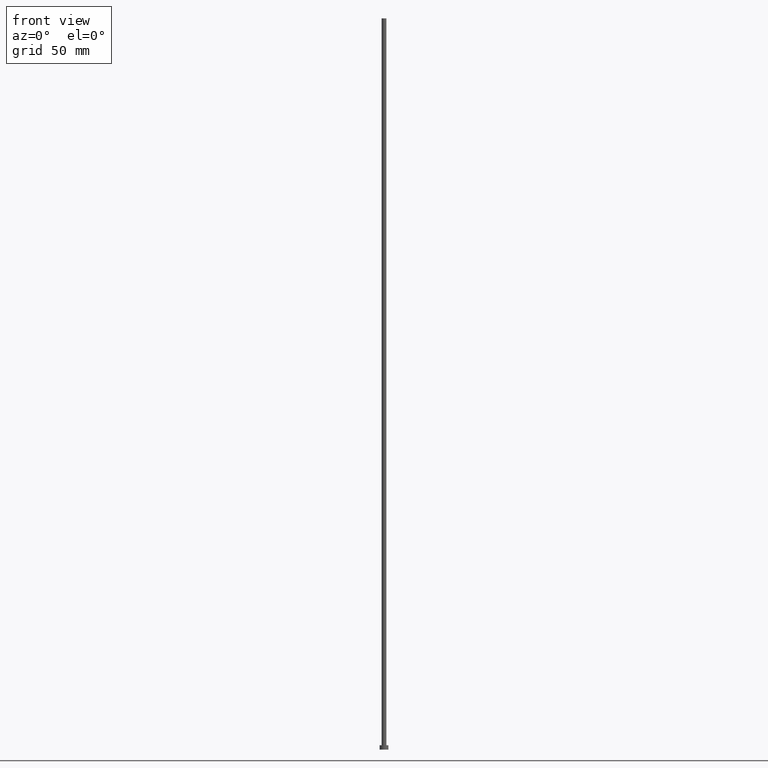
[diagram: clean part render]
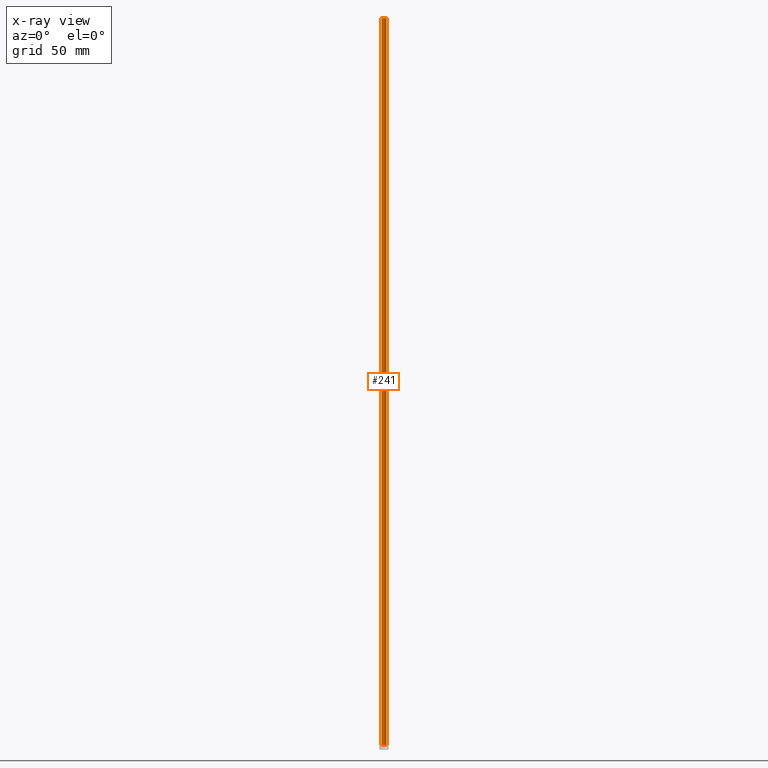
[diagram: x-ray — body ghosted, one internal face saturated and labeled with its STEP entity id]
A machine part, front view, then the same camera in x-ray: the body is ghosted and one INTERNAL B-rep face — a face not visible from any outside direction — is saturated and labeled: STEP entity #241.
In plain terms, the highlighted cylindrical surface (edge-blend (fillet) strip) has radius 1.6 mm, axis along (-0, -0, -1).
Its self-contained STEP definition (entity closure, byte-faithful):
#3 = DIRECTION ( 'NONE',  ( 1.000000000000000000, 0.000000000000000000, 0.000000000000000000 ) ) ;
#7 = VECTOR ( 'NONE', #174, 1000.000000000000000 ) ;
#16 = AXIS2_PLACEMENT_3D ( 'NONE', #80, #103, #82 ) ;
#18 = VERTEX_POINT ( 'NONE', #149 ) ;
#19 = FACE_OUTER_BOUND ( 'NONE', #104, .T. ) ;
#28 = CARTESIAN_POINT ( 'NONE',  ( -1.600000000000000089, 0.000000000000000000, 500.0000000000000000 ) ) ;
#48 = LINE ( 'NONE', #141, #178 ) ;
#58 = VERTEX_POINT ( 'NONE', #254 ) ;
#59 = DIRECTION ( 'NONE',  ( 0.000000000000000000, 0.000000000000000000, 1.000000000000000000 ) ) ;
#60 = ORIENTED_EDGE ( 'NONE', *, *, #120, .T. ) ;
#61 = CIRCLE ( 'NONE', #130, 1.600000000000000089 ) ;
#80 = CARTESIAN_POINT ( 'NONE',  ( 0.000000000000000000, 0.000000000000000000, 500.0000000000000000 ) ) ;
#82 = DIRECTION ( 'NONE',  ( -1.000000000000000000, 0.000000000000000000, 0.000000000000000000 ) ) ;
#103 = DIRECTION ( 'NONE',  ( -0.000000000000000000, -0.000000000000000000, -1.000000000000000000 ) ) ;
#104 = EDGE_LOOP ( 'NONE', ( #240, #253, #60, #215 ) ) ;
#112 = DIRECTION ( 'NONE',  ( 0.000000000000000000, 0.000000000000000000, 1.000000000000000000 ) ) ;
#120 = EDGE_CURVE ( 'NONE', #58, #18, #61, .T. ) ;
#130 = AXIS2_PLACEMENT_3D ( 'NONE', #226, #112, #3 ) ;
#133 = VERTEX_POINT ( 'NONE', #206 ) ;
#135 = LINE ( 'NONE', #28, #7 ) ;
#141 = CARTESIAN_POINT ( 'NONE',  ( 1.600000000000000089, 1.959434878635764737E-16, 500.0000000000000000 ) ) ;
#149 = CARTESIAN_POINT ( 'NONE',  ( -1.600000000000000089, 0.000000000000000000, 3.000000000000000000 ) ) ;
#161 = CIRCLE ( 'NONE', #204, 1.600000000000000089 ) ;
#167 = DIRECTION ( 'NONE',  ( 1.000000000000000000, 0.000000000000000000, 0.000000000000000000 ) ) ;
#170 = EDGE_CURVE ( 'NONE', #185, #58, #48, .T. ) ;
#174 = DIRECTION ( 'NONE',  ( -0.000000000000000000, -0.000000000000000000, -1.000000000000000000 ) ) ;
#178 = VECTOR ( 'NONE', #208, 1000.000000000000000 ) ;
#185 = VERTEX_POINT ( 'NONE', #223 ) ;
#188 = EDGE_CURVE ( 'NONE', #133, #18, #135, .T. ) ;
#190 = EDGE_CURVE ( 'NONE', #185, #133, #161, .T. ) ;
#204 = AXIS2_PLACEMENT_3D ( 'NONE', #216, #59, #167 ) ;
#206 = CARTESIAN_POINT ( 'NONE',  ( -1.600000000000000089, 0.000000000000000000, 500.0000000000000000 ) ) ;
#208 = DIRECTION ( 'NONE',  ( -0.000000000000000000, -0.000000000000000000, -1.000000000000000000 ) ) ;
#215 = ORIENTED_EDGE ( 'NONE', *, *, #188, .F. ) ;
#216 = CARTESIAN_POINT ( 'NONE',  ( 0.000000000000000000, 0.000000000000000000, 500.0000000000000000 ) ) ;
#223 = CARTESIAN_POINT ( 'NONE',  ( 1.600000000000000089, 1.959434878635764737E-16, 500.0000000000000000 ) ) ;
#226 = CARTESIAN_POINT ( 'NONE',  ( 0.000000000000000000, 0.000000000000000000, 3.000000000000000000 ) ) ;
#240 = ORIENTED_EDGE ( 'NONE', *, *, #190, .F. ) ;
#241 = ADVANCED_FACE ( 'NONE', ( #19 ), #251, .T. ) ;
#251 = CYLINDRICAL_SURFACE ( 'NONE', #16, 1.600000000000000089 ) ;
#253 = ORIENTED_EDGE ( 'NONE', *, *, #170, .T. ) ;
#254 = CARTESIAN_POINT ( 'NONE',  ( 1.600000000000000089, 1.959434878635764737E-16, 3.000000000000000000 ) ) ;